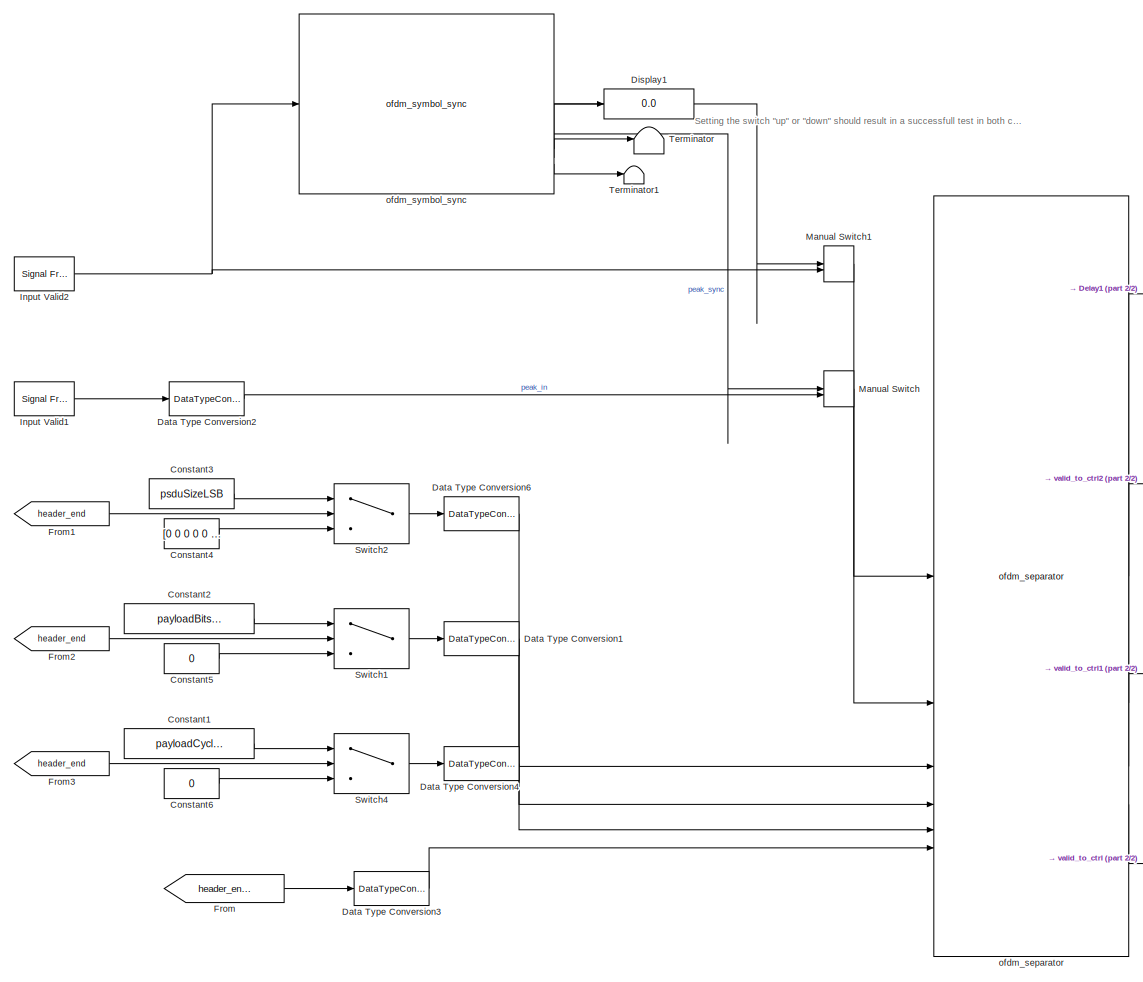
[diagram: root canvas - part 1/2, left side, full height]
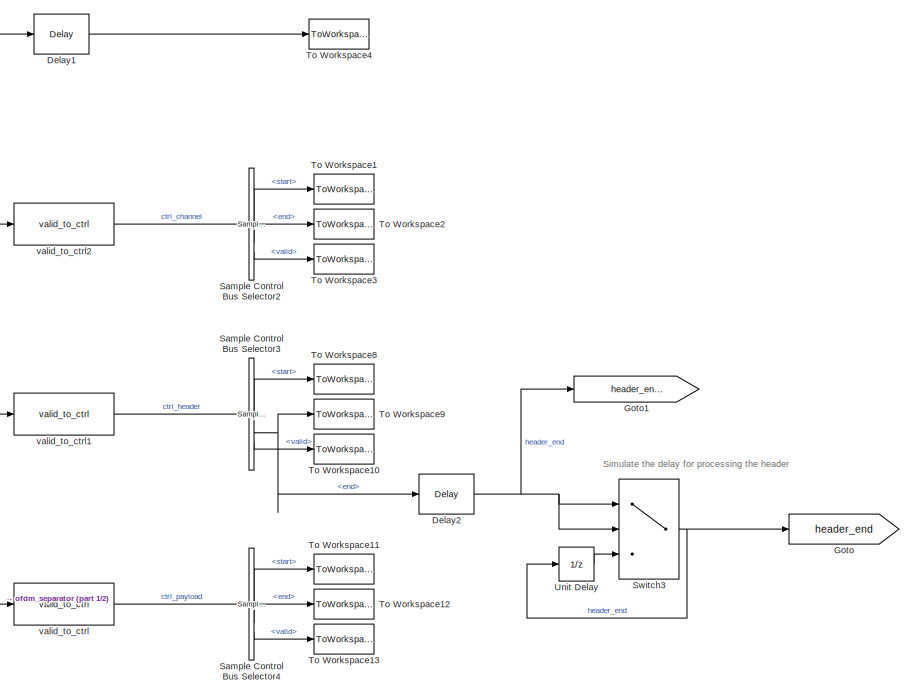
[diagram: root canvas - part 2/2, middle right region]
MODEL slx_b5a53c5c2418
KIND model
CONFIG AbsTol = auto
CONFIG EnableMultiTasking = off
CONFIG FixedStep = auto
CONFIG MaxStep = auto
CONFIG MinStep = auto
CONFIG RelTol = 1e-3
CONFIG SampleTimeConstraint = Unconstrained
CONFIG SolverName = FixedStepDiscrete
CONFIG StartTime = 0.0
CONFIG StopTime = stopTime
BLOCK [Constant] Constant1
  SampleTime = 1/CONST.fPHY
  Value = payloadCyclicPrefixLen
BLOCK [Constant] Constant2
  SampleTime = 1/CONST.fPHY
  Value = payloadBitsPerSubcarrier
BLOCK [Constant] Constant3
  SampleTime = 1/CONST.fPHY
  Value = psduSizeLSB
BLOCK [Constant] Constant4
  OutDataTypeStr = boolean
  SampleTime = 1/CONST.fPHY
  Value = [0 0 0 0 0 0 0 0 0 0 0 0 0 0 0 0 0 0 0 0 0 0 0 0]
BLOCK [Constant] Constant5
  OutDataTypeStr = uint32
  SampleTime = 1/CONST.fPHY
  Value = 0
BLOCK [Constant] Constant6
  OutDataTypeStr = uint32
  SampleTime = 1/CONST.fPHY
  Value = 0
BLOCK [DataTypeConversion] Data Type Conversion1
  OutDataTypeStr = uint8
  RndMeth = Floor
  SaturateOnIntegerOverflow = off
BLOCK [DataTypeConversion] Data Type Conversion2
  OutDataTypeStr = boolean
  RndMeth = Floor
  SaturateOnIntegerOverflow = off
BLOCK [DataTypeConversion] Data Type Conversion3
  OutDataTypeStr = boolean
  RndMeth = Floor
  SaturateOnIntegerOverflow = off
BLOCK [DataTypeConversion] Data Type Conversion4
  OutDataTypeStr = uint8
  RndMeth = Floor
  SaturateOnIntegerOverflow = off
BLOCK [DataTypeConversion] Data Type Conversion6
  OutDataTypeStr = boolean
  RndMeth = Floor
  SaturateOnIntegerOverflow = off
BLOCK [Delay] Delay1
  DelayLength = 1
  InitialCondition = 0
  InputPortMap = u0
  UseCircularBuffer = on
  UserDataPersistent = on
BLOCK [Delay] Delay2
  DelayLength = 500
  InitialCondition = 0
  InputPortMap = u0
  UseCircularBuffer = on
  UserDataPersistent = on
BLOCK [Display] Display1
  Decimation = 1
BLOCK [From] From
  GotoTag = header_end_pulse
BLOCK [From] From1
  GotoTag = header_end
BLOCK [From] From2
  GotoTag = header_end
BLOCK [From] From3
  GotoTag = header_end
BLOCK [Goto] Goto
  GotoTag = header_end
BLOCK [Goto] Goto1
  GotoTag = header_end_pulse
BLOCK [Reference] Input Valid1  REF=dspsrcs4/Signal From
Workspace
  SourceBlock = dspsrcs4/Signal From\nWorkspace
  SourceType = Signal From Workspace
BLOCK [Reference] Input Valid2  REF=dspsrcs4/Signal From
Workspace
  SourceBlock = dspsrcs4/Signal From\nWorkspace
  SourceType = Signal From Workspace
BLOCK [ManualSwitch] Manual Switch
BLOCK [ManualSwitch] Manual Switch1
BLOCK [Reference] Sample Control Bus Selector2  REF=whdlutilities/Sample Control
Bus Selector
  SourceBlock = whdlutilities/Sample Control\nBus Selector
BLOCK [Reference] Sample Control Bus Selector3  REF=whdlutilities/Sample Control
Bus Selector
  SourceBlock = whdlutilities/Sample Control\nBus Selector
BLOCK [Reference] Sample Control Bus Selector4  REF=whdlutilities/Sample Control
Bus Selector
  SourceBlock = whdlutilities/Sample Control\nBus Selector
BLOCK [Switch] Switch1
  Criteria = u2 ~= 0
  InputSameDT = off
  SaturateOnIntegerOverflow = off
BLOCK [Switch] Switch2
  Criteria = u2 ~= 0
  InputSameDT = off
  SaturateOnIntegerOverflow = off
BLOCK [Switch] Switch3
  Criteria = u2 ~= 0
  InputSameDT = off
  SaturateOnIntegerOverflow = off
BLOCK [Switch] Switch4
  Criteria = u2 ~= 0
  InputSameDT = off
  SaturateOnIntegerOverflow = off
BLOCK [Terminator] Terminator
BLOCK [Terminator] Terminator1
BLOCK [ToWorkspace] To Workspace1
  MaxDataPoints = inf
  SampleTime = 1/CONST.fPHY
  Save2DSignal = 2-D array (concatenate along first dimension)
  VariableName = startOut1
BLOCK [ToWorkspace] To Workspace10
  MaxDataPoints = inf
  SampleTime = 1/CONST.fPHY
  Save2DSignal = 2-D array (concatenate along first dimension)
  VariableName = validOut2
BLOCK [ToWorkspace] To Workspace11
  MaxDataPoints = inf
  SampleTime = 1/CONST.fPHY
  Save2DSignal = 2-D array (concatenate along first dimension)
  VariableName = startOut3
BLOCK [ToWorkspace] To Workspace12
  MaxDataPoints = inf
  SampleTime = 1/CONST.fPHY
  Save2DSignal = 2-D array (concatenate along first dimension)
  VariableName = endOut3
BLOCK [ToWorkspace] To Workspace13
  MaxDataPoints = inf
  SampleTime = 1/CONST.fPHY
  Save2DSignal = 2-D array (concatenate along first dimension)
  VariableName = validOut3
BLOCK [ToWorkspace] To Workspace2
  MaxDataPoints = inf
  SampleTime = 1/CONST.fPHY
  Save2DSignal = 2-D array (concatenate along first dimension)
  VariableName = endOut1
BLOCK [ToWorkspace] To Workspace3
  MaxDataPoints = inf
  SampleTime = 1/CONST.fPHY
  Save2DSignal = 2-D array (concatenate along first dimension)
  VariableName = validOut1
BLOCK [ToWorkspace] To Workspace4
  MaxDataPoints = inf
  SampleTime = 1/CONST.fPHY
  Save2DSignal = 2-D array (concatenate along first dimension)
  VariableName = dataOut
BLOCK [ToWorkspace] To Workspace8
  MaxDataPoints = inf
  SampleTime = 1/CONST.fPHY
  Save2DSignal = 2-D array (concatenate along first dimension)
  VariableName = startOut2
BLOCK [ToWorkspace] To Workspace9
  MaxDataPoints = inf
  SampleTime = 1/CONST.fPHY
  Save2DSignal = 2-D array (concatenate along first dimension)
  VariableName = endOut2
BLOCK [UnitDelay] Unit Delay
  HasFrameUpgradeWarning = on
  SampleTime = -1
BLOCK [Reference] ofdm_separator  REF=HDL_ieee_8021513/ofdm_separator
  SourceBlock = HDL_ieee_8021513/ofdm_separator
  SourceProductName = HDL IEEE 8021513
  SourceType = SubSystem
BLOCK [Reference] ofdm_symbol_sync  REF=HDL_ieee_8021513/ofdm_symbol_sync
  SourceBlock = HDL_ieee_8021513/ofdm_symbol_sync
  SourceProductName = HDL IEEE 8021513
  SourceType = SubSystem
BLOCK [Reference] valid_to_ctrl  REF=HDL_ieee_8021513/valid_to_ctrl
  SourceBlock = HDL_ieee_8021513/valid_to_ctrl
  SourceProductName = HDL IEEE 8021513
  SourceType = SubSystem
BLOCK [Reference] valid_to_ctrl1  REF=HDL_ieee_8021513/valid_to_ctrl
  SourceBlock = HDL_ieee_8021513/valid_to_ctrl
  SourceProductName = HDL IEEE 8021513
  SourceType = SubSystem
BLOCK [Reference] valid_to_ctrl2  REF=HDL_ieee_8021513/valid_to_ctrl
  SourceBlock = HDL_ieee_8021513/valid_to_ctrl
  SourceProductName = HDL IEEE 8021513
  SourceType = SubSystem
ANNOTATION (root): Setting the switch "up" or "down" should result in a successfull test in both cases
ANNOTATION (root): Simulate the delay for processing the header
LINE Constant1:1 -> Switch4:1
LINE Constant2:1 -> Switch1:1
LINE Constant3:1 -> Switch2:1
LINE Constant4:1 -> Switch2:3
LINE Constant5:1 -> Switch1:3
LINE Constant6:1 -> Switch4:3
LINE Data Type Conversion1:1 -> ofdm_separator:4
LINE Data Type Conversion2:1 -> Manual Switch:2
LINE Data Type Conversion3:1 -> ofdm_separator:6
LINE Data Type Conversion4:1 -> ofdm_separator:5
LINE Data Type Conversion6:1 -> ofdm_separator:3
LINE Delay1:1 -> To Workspace4:1
NET Delay2:1 -> Goto1:1, Switch3:1, Switch3:2
LINE From1:1 -> Switch2:2
LINE From2:1 -> Switch1:2
LINE From3:1 -> Switch4:2
LINE From:1 -> Data Type Conversion3:1
LINE Input Valid1:1 -> Data Type Conversion2:1
NET Input Valid2:1 -> Manual Switch1:2, ofdm_symbol_sync:1
LINE Manual Switch1:1 -> ofdm_separator:1
LINE Manual Switch:1 -> ofdm_separator:2
LINE Sample Control Bus Selector2:1 -> To Workspace1:1
LINE Sample Control Bus Selector2:2 -> To Workspace2:1
LINE Sample Control Bus Selector2:3 -> To Workspace3:1
LINE Sample Control Bus Selector3:1 -> To Workspace8:1
NET Sample Control Bus Selector3:2 -> Delay2:1, To Workspace9:1
LINE Sample Control Bus Selector3:3 -> To Workspace10:1
LINE Sample Control Bus Selector4:1 -> To Workspace11:1
LINE Sample Control Bus Selector4:2 -> To Workspace12:1
LINE Sample Control Bus Selector4:3 -> To Workspace13:1
LINE Switch1:1 -> Data Type Conversion1:1
LINE Switch2:1 -> Data Type Conversion6:1
NET Switch3:1 -> Goto:1, Unit Delay:1
LINE Switch4:1 -> Data Type Conversion4:1
LINE Unit Delay:1 -> Switch3:3
LINE ofdm_separator:1 -> Delay1:1
LINE ofdm_separator:2 -> valid_to_ctrl2:1
LINE ofdm_separator:3 -> valid_to_ctrl1:1
LINE ofdm_separator:4 -> valid_to_ctrl:1
LINE ofdm_symbol_sync:1 -> Manual Switch1:1
LINE ofdm_symbol_sync:2 -> Manual Switch:1
LINE ofdm_symbol_sync:3 -> Display1:1
LINE ofdm_symbol_sync:4 -> Terminator:1
LINE ofdm_symbol_sync:5 -> Terminator1:1
LINE valid_to_ctrl1:1 -> Sample Control Bus Selector3:1
LINE valid_to_ctrl2:1 -> Sample Control Bus Selector2:1
LINE valid_to_ctrl:1 -> Sample Control Bus Selector4:1
note: NET lines group one-source signal fan-out (src -> all destinations, sorted); 1:1 wires keep LINE
